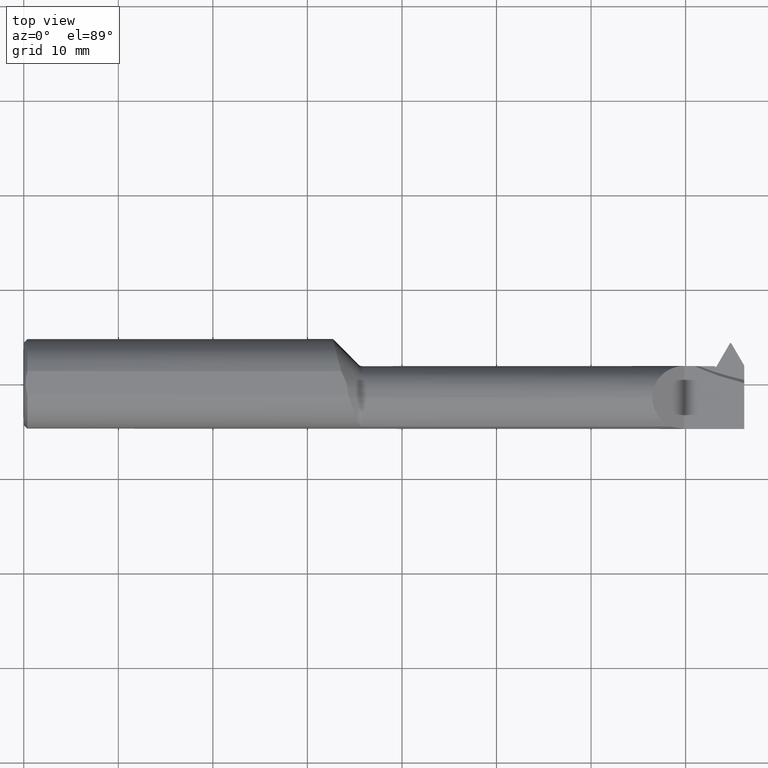
[diagram: clean part render]
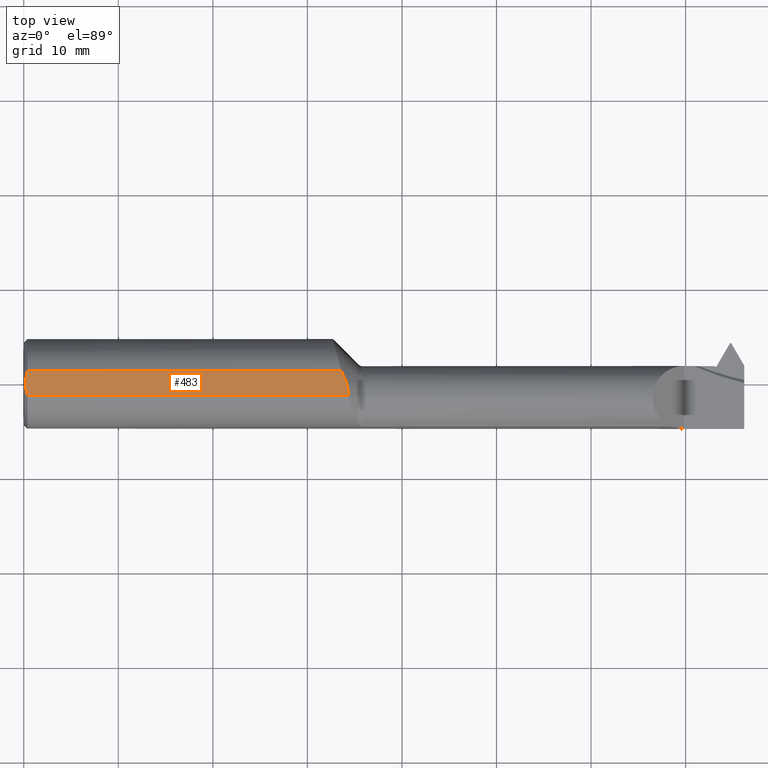
[diagram: same view with one face highlighted and labeled with its STEP entity id]
A machine part, top view. The second image highlights one B-rep face of the part: STEP entity #483.
In plain terms, the highlighted planar face has unit normal (-0, 0, -1).
Its self-contained STEP definition (entity closure, byte-faithful):
#3 = VERTEX_POINT ( 'NONE', #110 ) ;
#12 = CARTESIAN_POINT ( 'NONE',  ( 0.01500000000000407431, 0.05073361804563106953, 0.1803500000000000381 ) ) ;
#88 = CARTESIAN_POINT ( 'NONE',  ( 0.008612241053614183919, -0.01707100630372277231, 0.1803500000000000381 ) ) ;
#89 = CARTESIAN_POINT ( 'NONE',  ( 0.008000000000003695128, 0.008563083437642084877, 0.1803500000000000381 ) ) ;
#104 = CARTESIAN_POINT ( 'NONE',  ( 1.352116104292441223, -0.04189000192750409746, 0.1803499999999999548 ) ) ;
#107 = VERTEX_POINT ( 'NONE', #12 ) ;
#110 = CARTESIAN_POINT ( 'NONE',  ( 1.322226761124839722, 0.05073361804563108340, 0.1803500000000000381 ) ) ;
#170 = CARTESIAN_POINT ( 'NONE',  ( 0.01500000000000270388, -0.05073361804563293609, 0.1803500000000000381 ) ) ;
#187 = CARTESIAN_POINT ( 'NONE',  ( 0.008000000000003542472, -0.008560842633729524517, 0.1803500000000000381 ) ) ;
#204 = ORIENTED_EDGE ( 'NONE', *, *, #707, .F. ) ;
#216 = VECTOR ( 'NONE', #1019, 39.37007874015748143 ) ;
#217 = CARTESIAN_POINT ( 'NONE',  ( 1.337572761939021859, 0.01862349438791057604, 0.1803500000000000103 ) ) ;
#221 = ORIENTED_EDGE ( 'NONE', *, *, #303, .T. ) ;
#237 = CARTESIAN_POINT ( 'NONE',  ( 0.01500000000000270388, -0.05073361804563293609, 0.1803500000000000381 ) ) ;
#250 = ORIENTED_EDGE ( 'NONE', *, *, #982, .T. ) ;
#279 = LINE ( 'NONE', #654, #216 ) ;
#293 = B_SPLINE_CURVE_WITH_KNOTS ( 'NONE', 3,
 ( #860, #1044, #217, #396, #762, #574, #104, #648 ),
 .UNSPECIFIED., .F., .F.,
 ( 4, 2, 2, 4 ),
 ( 0.004145903190273300849, 0.005498764589092035304, 0.006175195288501404700, 0.006851625987910774963 ),
 .UNSPECIFIED. ) ;
#303 = EDGE_CURVE ( 'NONE', #107, #729, #511, .T. ) ;
#325 = EDGE_LOOP ( 'NONE', ( #917, #204, #221, #250, #859 ) ) ;
#333 = DIRECTION ( 'NONE',  ( 1.000000000000000000, 0.000000000000000000, 0.000000000000000000 ) ) ;
#342 = AXIS2_PLACEMENT_3D ( 'NONE', #520, #411, #679 ) ;
#370 = CARTESIAN_POINT ( 'NONE',  ( 0.01276000437992518173, -0.04246172269127173465, 0.1803500000000000381 ) ) ;
#396 = CARTESIAN_POINT ( 'NONE',  ( 1.345608198981767201, -0.006829386849603939075, 0.1803500000000000103 ) ) ;
#397 = EDGE_CURVE ( 'NONE', #3, #1137, #293, .T. ) ;
#411 = DIRECTION ( 'NONE',  ( -0.000000000000000000, 0.000000000000000000, -1.000000000000000000 ) ) ;
#434 = EDGE_CURVE ( 'NONE', #1137, #538, #279, .T. ) ;
#452 = CARTESIAN_POINT ( 'NONE',  ( 0.01101443691611578637, 0.03415726871037061407, 0.1803500000000000381 ) ) ;
#458 = CARTESIAN_POINT ( 'NONE',  ( 0.01277025903651118725, 0.04249959126806788362, 0.1803500000000000381 ) ) ;
#460 = CARTESIAN_POINT ( 'NONE',  ( 0.01098483483941769742, -0.03399629736709450234, 0.1803500000000000381 ) ) ;
#483 = ADVANCED_FACE ( 'NONE', ( #764 ), #782, .F. ) ;
#511 = B_SPLINE_CURVE_WITH_KNOTS ( 'NONE', 3,
 ( #720, #458, #452, #1187, #89, #816 ),
 .UNSPECIFIED., .F., .F.,
 ( 4, 2, 4 ),
 ( 0.004855974516636852971, 0.005500369355264183267, 0.006144764193891513564 ),
 .UNSPECIFIED. ) ;
#520 = CARTESIAN_POINT ( 'NONE',  ( 0.000000000000000000, 0.1749999999999999889, 0.1803500000000000381 ) ) ;
#538 = VERTEX_POINT ( 'NONE', #237 ) ;
#567 = CARTESIAN_POINT ( 'NONE',  ( 1.352489247483494639, -0.05073361804563127769, 0.1803500000000000381 ) ) ;
#574 = CARTESIAN_POINT ( 'NONE',  ( 1.351092997493398506, -0.03308665011114130666, 0.1803500000000000936 ) ) ;
#648 = CARTESIAN_POINT ( 'NONE',  ( 1.352489247483494639, -0.05073361804563127769, 0.1803500000000000381 ) ) ;
#654 = CARTESIAN_POINT ( 'NONE',  ( 3.000000000000000444, -0.05073361804563126382, 0.1803499999999999548 ) ) ;
#679 = DIRECTION ( 'NONE',  ( -1.000000000000000000, 0.000000000000000000, 0.000000000000000000 ) ) ;
#707 = EDGE_CURVE ( 'NONE', #107, #3, #1169, .T. ) ;
#709 = CARTESIAN_POINT ( 'NONE',  ( 3.000000000000000444, 0.05073361804563126382, 0.1803499999999999548 ) ) ;
#720 = CARTESIAN_POINT ( 'NONE',  ( 0.01500000000000407431, 0.05073361804563106953, 0.1803500000000000381 ) ) ;
#729 = VERTEX_POINT ( 'NONE', #1074 ) ;
#762 = CARTESIAN_POINT ( 'NONE',  ( 1.347842309812443906, -0.01555456189894688195, 0.1803499999999999548 ) ) ;
#764 = FACE_OUTER_BOUND ( 'NONE', #325, .T. ) ;
#782 = PLANE ( 'NONE',  #342 ) ;
#816 = CARTESIAN_POINT ( 'NONE',  ( 0.007999999999993392605, 7.430558801885214279E-16, 0.1803500000000000381 ) ) ;
#859 = ORIENTED_EDGE ( 'NONE', *, *, #434, .F. ) ;
#860 = CARTESIAN_POINT ( 'NONE',  ( 1.322226761124839722, 0.05073361804563108340, 0.1803500000000000381 ) ) ;
#885 = VECTOR ( 'NONE', #333, 39.37007874015748143 ) ;
#897 = B_SPLINE_CURVE_WITH_KNOTS ( 'NONE', 3,
 ( #1011, #187, #88, #460, #370, #170 ),
 .UNSPECIFIED., .F., .F.,
 ( 4, 2, 4 ),
 ( 0.006144764193891513564, 0.006788990406055715049, 0.007433216618219917401 ),
 .UNSPECIFIED. ) ;
#917 = ORIENTED_EDGE ( 'NONE', *, *, #397, .F. ) ;
#982 = EDGE_CURVE ( 'NONE', #729, #538, #897, .T. ) ;
#1011 = CARTESIAN_POINT ( 'NONE',  ( 0.007999999999993392605, 7.430558801885214279E-16, 0.1803500000000000381 ) ) ;
#1019 = DIRECTION ( 'NONE',  ( -1.000000000000000000, -0.000000000000000000, -0.000000000000000000 ) ) ;
#1044 = CARTESIAN_POINT ( 'NONE',  ( 1.330428056801812753, 0.03488693378837387504, 0.1803500000000000103 ) ) ;
#1074 = CARTESIAN_POINT ( 'NONE',  ( 0.007999999999993392605, 7.430558801885214279E-16, 0.1803500000000000381 ) ) ;
#1137 = VERTEX_POINT ( 'NONE', #567 ) ;
#1169 = LINE ( 'NONE', #709, #885 ) ;
#1187 = CARTESIAN_POINT ( 'NONE',  ( 0.008625660259316448794, 0.01721603573659752015, 0.1803500000000000381 ) ) ;